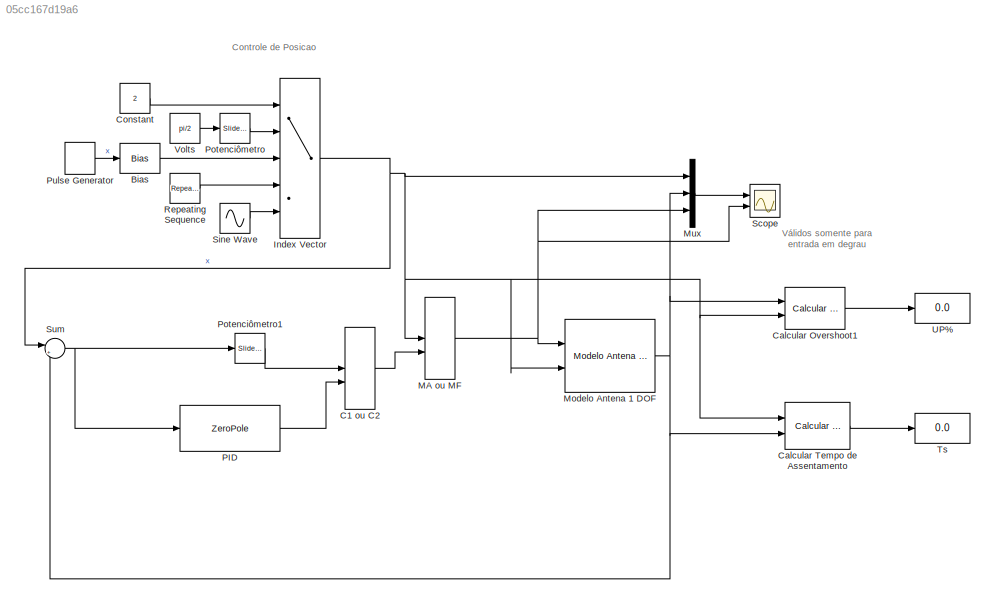
MODEL slx_05cc167d19a6
KIND model
CONFIG AbsTol = auto
CONFIG FixedStep = 0.01
CONFIG MaxStep = 1
CONFIG MinStep = auto
CONFIG RelTol = 1e-3
CONFIG SampleTimeConstraint = Unconstrained
CONFIG Solver = ode5
CONFIG SolverMode = Auto
CONFIG SolverName = ode5
CONFIG StartTime = 0.0
CONFIG StopTime = 1000
BLOCK [Bias] Bias
  SaturateOnIntegerOverflow = off
BLOCK [ManualSwitch] C1 ou C2
  CurrentSetting = 0
BLOCK [Reference] Calcular Overshoot1  REF=AvgModels/Calcular
Overshoot
  Ports = [2, 1]
  SourceBlock = AvgModels/Calcular\nOvershoot
  SourceType = Calc_Up
BLOCK [Reference] Calcular Tempo de Assentamento  REF=AvgModels/Calcular 
Tempo de
Assentamento
  Ports = [2, 1]
  SourceBlock = AvgModels/Calcular \nTempo de\nAssentamento
  SourceType = Calc_Ts
BLOCK [Constant] Constant
  Value = 2
BLOCK [MultiPortSwitch] Index Vector
  DataPortOrder = Zero-based contiguous
  InputSameDT = off
  Inputs = 4
  Ports = [5, 1]
  SaturateOnIntegerOverflow = off
  zeroidx = on
BLOCK [ManualSwitch] MA ou MF
  CurrentSetting = 0
BLOCK [Reference] Modelo Antena 1 DOF  REF=AvgModels/Modelos Animados/Modelo
Antena
1 DOF
  J = 10
  K = 0.2
  Ports = [2, 1]
  SourceBlock = AvgModels/Modelos Animados/Modelo\nAntena\n1 DOF
  SourceType = Antena
BLOCK [Mux] Mux
  DisplayOption = bar
  Inputs = 3
  Ports = [3, 1]
BLOCK [ZeroPole] PID
  Gain = [55.5]
  Poles = [0 -2]
  Zeros = [-0.2 -0.2]
BLOCK [Reference] Potenciômetro  REF=simulink/Math
Operations/Slider
Gain
  Ports = [1, 1]
  SourceBlock = simulink/Math\nOperations/Slider\nGain
  SourceType = Slider Gain
  gain = 0.2
  high = 1
  low = -1
BLOCK [Reference] Potenciômetro1  REF=simulink/Math
Operations/Slider
Gain
  Ports = [1, 1]
  SourceBlock = simulink/Math\nOperations/Slider\nGain
  SourceType = Slider Gain
  gain = 0.625
  high = 0.625
  low = 0
BLOCK [DiscretePulseGenerator] Pulse Generator
  Amplitude = pi/2
  Period = 100
  Ports = [0, 1]
  PulseType = Time based
  PulseWidth = 50
BLOCK [Reference] Repeating Sequence  REF=simulink/Sources/Repeating
Sequence
  Ports = [0, 1]
  SourceBlock = simulink/Sources/Repeating\nSequence
  SourceType = Repeating table
  rep_seq_t = [0 60 120]
  rep_seq_y = [0 4*pi 0]
BLOCK [Scope] Scope
  Floating = off
  NumInputPorts = 2
  Ports = [2]
  YMax = 5~5
  YMin = -5~-5
  ZoomMode = xonly
BLOCK [Sin] Sine Wave
  Frequency = 0.2
  Ports = [0, 1]
  SampleTime = 0
BLOCK [Sum] Sum
  IconShape = round
  InputSameDT = off
  Inputs = |+-
  OutDataTypeStr = Inherit: Inherit via internal rule
  Ports = [2, 1]
  SaturateOnIntegerOverflow = off
BLOCK [Display] Ts
  Decimation = 1
  Ports = [1]
BLOCK [Display] UP%
  Decimation = 1
  Ports = [1]
BLOCK [Constant] Volts
  Value = pi/2
ANNOTATION (root): Controle de Posicao
ANNOTATION (root): Válidos somente para entrada em degrau
LINE Bias:1 -> Index Vector:3
LINE C1 ou C2:1 -> MA ou MF:2
LINE Calcular Overshoot1:1 -> UP%:1
LINE Calcular Tempo de Assentamento:1 -> Ts:1
LINE Constant:1 -> Index Vector:1
NET Index Vector:1 -> Calcular Overshoot1:2, Calcular Tempo de Assentamento:1, MA ou MF:1, Modelo Antena 1 DOF:2, Mux:1, Sum:1
NET MA ou MF:1 -> Modelo Antena 1 DOF:1, Mux:3, Scope:2
NET Modelo Antena 1 DOF:1 -> Calcular Overshoot1:1, Calcular Tempo de Assentamento:2, Mux:2, Sum:2
LINE Mux:1 -> Scope:1
LINE PID:1 -> C1 ou C2:2
LINE Potenciômetro1:1 -> C1 ou C2:1
LINE Potenciômetro:1 -> Index Vector:2
LINE Pulse Generator:1 -> Bias:1
LINE Repeating Sequence:1 -> Index Vector:4
LINE Sine Wave:1 -> Index Vector:5
NET Sum:1 -> PID:1, Potenciômetro1:1
LINE Volts:1 -> Potenciômetro:1
note: NET lines group one-source signal fan-out (src -> all destinations, sorted); 1:1 wires keep LINE
